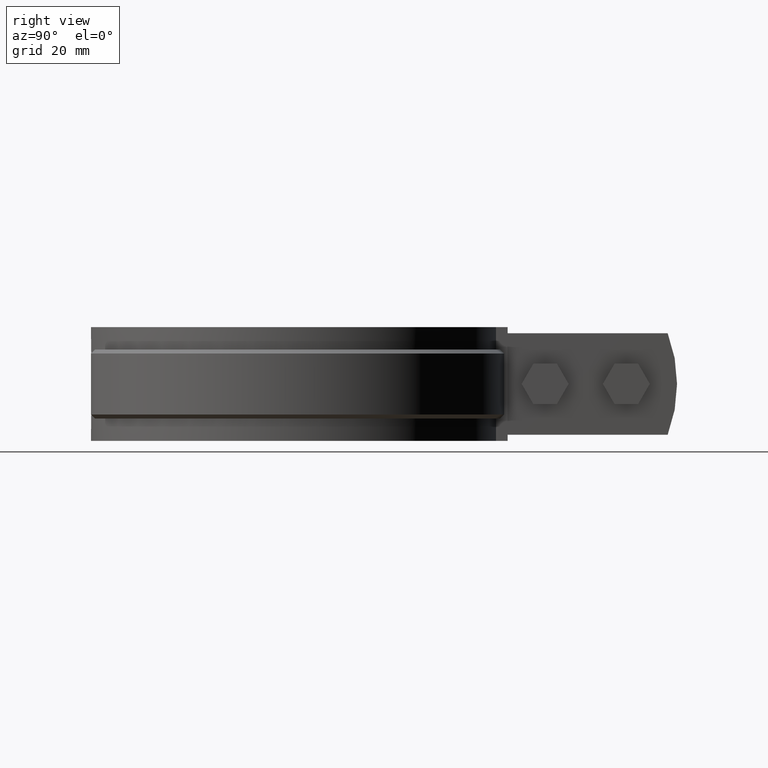
[diagram: clean part render]
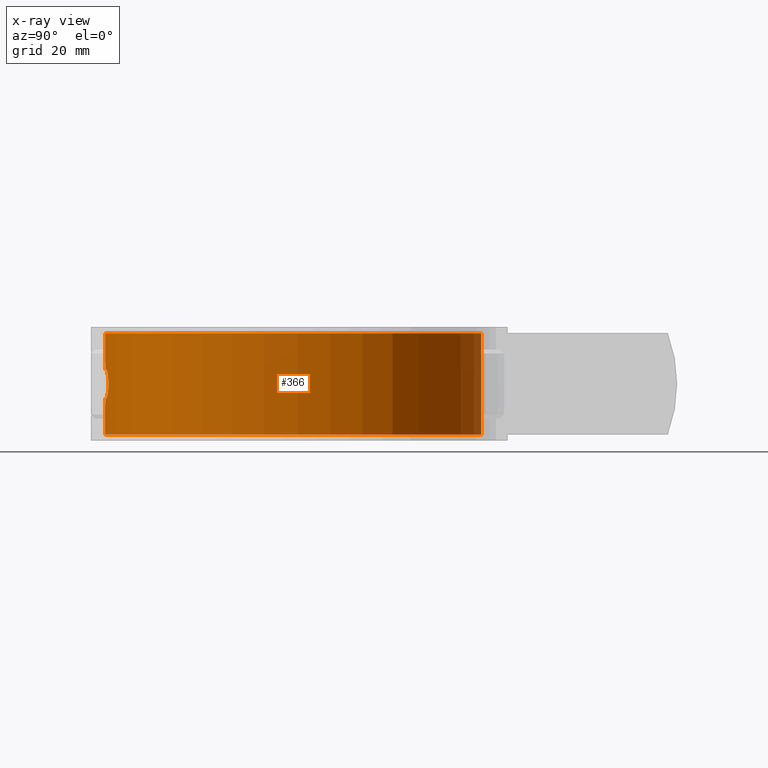
[diagram: x-ray — body ghosted, one internal face saturated and labeled with its STEP entity id]
A machine part, right view, then the same camera in x-ray: the body is ghosted and one INTERNAL B-rep face — a face not visible from any outside direction — is saturated and labeled: STEP entity #366.
In plain terms, the highlighted cylindrical surface (partial cylindrical patch) has radius 46.55 mm, axis along (0, 0, 1).
Its self-contained STEP definition (entity closure, byte-faithful):
#366 = ADVANCED_FACE( '', ( #623, #624 ), #625, .T. );
#623 = FACE_BOUND( '', #1312, .T. );
#624 = FACE_OUTER_BOUND( '', #1313, .T. );
#625 = CYLINDRICAL_SURFACE( '', #1314, 46.5500000000000 );
#1312 = EDGE_LOOP( '', ( #2775, #2776, #2777, #2778, #2779, #2780, #2781, #2782, #2783, #2784, #2785, #2786, #2787, #2788, #2789, #2790 ) );
#1313 = EDGE_LOOP( '', ( #2791, #2792, #2793, #2794 ) );
#1314 = AXIS2_PLACEMENT_3D( '', #2795, #2796, #2797 );
#2775 = ORIENTED_EDGE( '', *, *, #4192, .F. );
#2776 = ORIENTED_EDGE( '', *, *, #4193, .F. );
#2777 = ORIENTED_EDGE( '', *, *, #4194, .F. );
#2778 = ORIENTED_EDGE( '', *, *, #4195, .F. );
#2779 = ORIENTED_EDGE( '', *, *, #4196, .F. );
#2780 = ORIENTED_EDGE( '', *, *, #4197, .F. );
#2781 = ORIENTED_EDGE( '', *, *, #4198, .F. );
#2782 = ORIENTED_EDGE( '', *, *, #4199, .F. );
#2783 = ORIENTED_EDGE( '', *, *, #4200, .F. );
#2784 = ORIENTED_EDGE( '', *, *, #4201, .F. );
#2785 = ORIENTED_EDGE( '', *, *, #4202, .F. );
#2786 = ORIENTED_EDGE( '', *, *, #4203, .F. );
#2787 = ORIENTED_EDGE( '', *, *, #4204, .F. );
#2788 = ORIENTED_EDGE( '', *, *, #4205, .F. );
#2789 = ORIENTED_EDGE( '', *, *, #4206, .F. );
#2790 = ORIENTED_EDGE( '', *, *, #4207, .F. );
#2791 = ORIENTED_EDGE( '', *, *, #4208, .T. );
#2792 = ORIENTED_EDGE( '', *, *, #4209, .F. );
#2793 = ORIENTED_EDGE( '', *, *, #4186, .F. );
#2794 = ORIENTED_EDGE( '', *, *, #4210, .T. );
#2795 = CARTESIAN_POINT( '', ( -2.60208521396521E-015, 1.38777878078145E-014, 14.0000000000000 ) );
#2796 = DIRECTION( '', ( 0.000000000000000, 0.000000000000000, 1.00000000000000 ) );
#2797 = DIRECTION( '', ( 0.107411385606873, 0.994214662053428, 0.000000000000000 ) );
#4186 = EDGE_CURVE( '', #4811, #4813, #4814, .T. );
#4192 = EDGE_CURVE( '', #4824, #4825, #4826, .T. );
#4193 = EDGE_CURVE( '', #4827, #4824, #4828, .F. );
#4194 = EDGE_CURVE( '', #4829, #4827, #4830, .T. );
#4195 = EDGE_CURVE( '', #4831, #4829, #4832, .F. );
#4196 = EDGE_CURVE( '', #4833, #4831, #4834, .T. );
#4197 = EDGE_CURVE( '', #4835, #4833, #4836, .F. );
#4198 = EDGE_CURVE( '', #4837, #4835, #4838, .T. );
#4199 = EDGE_CURVE( '', #4839, #4837, #4840, .F. );
#4200 = EDGE_CURVE( '', #4841, #4839, #4842, .T. );
#4201 = EDGE_CURVE( '', #4843, #4841, #4844, .F. );
#4202 = EDGE_CURVE( '', #4845, #4843, #4846, .T. );
#4203 = EDGE_CURVE( '', #4847, #4845, #4848, .F. );
#4204 = EDGE_CURVE( '', #4849, #4847, #4850, .T. );
#4205 = EDGE_CURVE( '', #4851, #4849, #4852, .F. );
#4206 = EDGE_CURVE( '', #4853, #4851, #4854, .T. );
#4207 = EDGE_CURVE( '', #4825, #4853, #4855, .F. );
#4208 = EDGE_CURVE( '', #4856, #4857, #4858, .T. );
#4209 = EDGE_CURVE( '', #4813, #4857, #4859, .T. );
#4210 = EDGE_CURVE( '', #4811, #4856, #4860, .T. );
#4811 = VERTEX_POINT( '', #7170 );
#4813 = VERTEX_POINT( '', #7172 );
#4814 = CIRCLE( '', #7173, 46.5500000000000 );
#4824 = VERTEX_POINT( '', #7201 );
#4825 = VERTEX_POINT( '', #7202 );
#4826 = B_SPLINE_CURVE_WITH_KNOTS( '', 3, ( #7203, #7204, #7205, #7206, #7207, #7208 ), .UNSPECIFIED., .F., .F., ( 4, 2, 4 ), ( 2.35809924648085E-013, 0.000335866557489505, 0.000671733114743200 ), .UNSPECIFIED. );
#4827 = VERTEX_POINT( '', #7209 );
#4828 = ELLIPSE( '', #7210, 212.061327465781, 46.5500000000000 );
#4829 = VERTEX_POINT( '', #7211 );
#4830 = B_SPLINE_CURVE_WITH_KNOTS( '', 3, ( #7212, #7213, #7214, #7215, #7216, #7217, #7218, #7219, #7220, #7221 ), .UNSPECIFIED., .F., .F., ( 4, 2, 2, 2, 4 ), ( 1.08420217248550E-019, 0.000671567803738867, 0.00134313560747773, 0.00201470341121660, 0.00268627121495547 ), .UNSPECIFIED. );
#4831 = VERTEX_POINT( '', #7222 );
#4832 = ELLIPSE( '', #7223, 212.061219288399, 46.5500000000000 );
#4833 = VERTEX_POINT( '', #7224 );
#4834 = B_SPLINE_CURVE_WITH_KNOTS( '', 3, ( #7225, #7226, #7227, #7228, #7229, #7230 ), .UNSPECIFIED., .F., .F., ( 4, 2, 4 ), ( 1.57862219157823E-018, 0.000335865712486407, 0.000671731424972812 ), .UNSPECIFIED. );
#4835 = VERTEX_POINT( '', #7231 );
#4836 = CIRCLE( '', #7232, 46.5500000000000 );
#4837 = VERTEX_POINT( '', #7233 );
#4838 = B_SPLINE_CURVE_WITH_KNOTS( '', 3, ( #7234, #7235, #7236, #7237, #7238, #7239, #7240, #7241, #7242, #7243, #7244, #7245, #7246, #7247, #7248, #7249, #7250, #7251, #7252, #7253, #7254, #7255, #7256, #7257, #7258, #7259, #7260, #7261, #7262, #7263, #7264, #7265, #7266, #7267 ), .UNSPECIFIED., .F., .F., ( 4, 2, 2, 2, 2, 2, 2, 2, 2, 2, 2, 2, 2, 2, 2, 2, 4 ), ( 5.27595548005020E-018, 0.000687153855287154, 0.00137430771057430, 0.00206146156586145, 0.00274861542114860, 0.00343576927643575, 0.00412292313172290, 0.00481007698701004, 0.00549723084229719, 0.00618438469758434, 0.00687153855287149, 0.00755869240815863, 0.00824584626344578, 0.00893300011873293, 0.00962015397402007, 0.0103073078293072, 0.0109944616845944 ), .UNSPECIFIED. );
#4839 = VERTEX_POINT( '', #7268 );
#4840 = CIRCLE( '', #7269, 46.5500000000000 );
#4841 = VERTEX_POINT( '', #7270 );
#4842 = B_SPLINE_CURVE_WITH_KNOTS( '', 3, ( #7271, #7272, #7273, #7274, #7275, #7276 ), .UNSPECIFIED., .F., .F., ( 4, 2, 4 ), ( 4.84869951806108E-019, 0.000335866557371588, 0.000671733114743175 ), .UNSPECIFIED. );
#4843 = VERTEX_POINT( '', #7277 );
#4844 = ELLIPSE( '', #7278, 212.061327465736, 46.5500000000000 );
#4845 = VERTEX_POINT( '', #7279 );
#4846 = B_SPLINE_CURVE_WITH_KNOTS( '', 3, ( #7280, #7281, #7282, #7283, #7284, #7285, #7286, #7287, #7288, #7289 ), .UNSPECIFIED., .F., .F., ( 4, 2, 2, 2, 4 ), ( 1.08420217248550E-019, 0.000671567803738866, 0.00134313560747773, 0.00201470341121660, 0.00268627121495546 ), .UNSPECIFIED. );
#4847 = VERTEX_POINT( '', #7290 );
#4848 = ELLIPSE( '', #7291, 212.061219288384, 46.5500000000000 );
#4849 = VERTEX_POINT( '', #7292 );
#4850 = B_SPLINE_CURVE_WITH_KNOTS( '', 3, ( #7293, #7294, #7295, #7296, #7297, #7298 ), .UNSPECIFIED., .F., .F., ( 4, 2, 4 ), ( 1.57862219157823E-018, 0.000335865780853493, 0.000671731561706984 ), .UNSPECIFIED. );
#4851 = VERTEX_POINT( '', #7299 );
#4852 = CIRCLE( '', #7300, 46.5500000000000 );
#4853 = VERTEX_POINT( '', #7301 );
#4854 = B_SPLINE_CURVE_WITH_KNOTS( '', 3, ( #7302, #7303, #7304, #7305, #7306, #7307, #7308, #7309, #7310, #7311, #7312, #7313, #7314, #7315, #7316, #7317, #7318, #7319, #7320, #7321, #7322, #7323, #7324, #7325, #7326, #7327, #7328, #7329, #7330, #7331, #7332, #7333, #7334, #7335 ), .UNSPECIFIED., .F., .F., ( 4, 2, 2, 2, 2, 2, 2, 2, 2, 2, 2, 2, 2, 2, 2, 2, 4 ), ( 5.27595548005020E-018, 0.000687153882971471, 0.00137430776594294, 0.00206146164891440, 0.00274861553188587, 0.00343576941485733, 0.00412292329782880, 0.00481007718080027, 0.00549723106377173, 0.00618438494674320, 0.00687153882971467, 0.00755869271268614, 0.00824584659565760, 0.00893300047862907, 0.00962015436160053, 0.0103073082445720, 0.0109944621275435 ), .UNSPECIFIED. );
#4855 = CIRCLE( '', #7336, 46.5500000000000 );
#4856 = VERTEX_POINT( '', #7337 );
#4857 = VERTEX_POINT( '', #7338 );
#4858 = CIRCLE( '', #7339, 46.5500000000000 );
#4859 = LINE( '', #7340, #7341 );
#4860 = LINE( '', #7342, #7343 );
#7170 = CARTESIAN_POINT( '', ( -6.57618567103940, 46.0831453138782, 12.5000000000000 ) );
#7172 = CARTESIAN_POINT( '', ( 6.57618567103934, 46.0831453138782, 12.5000000000000 ) );
#7173 = AXIS2_PLACEMENT_3D( '', #8435, #8436, #8437 );
#7201 = CARTESIAN_POINT( '', ( -1.16219512106161, -46.5354897094742, 3.89024390639292 ) );
#7202 = CARTESIAN_POINT( '', ( -1.65000682858044, -46.5207478171367, 3.50000000000001 ) );
#7203 = CARTESIAN_POINT( '', ( -1.16219512100910, -46.5354897094755, 3.89024390662629 ) );
#7204 = CARTESIAN_POINT( '', ( -1.18712430843555, -46.5348671184127, 3.77944751362335 ) );
#7205 = CARTESIAN_POINT( '', ( -1.24903601452478, -46.5333243675708, 3.68044135960887 ) );
#7206 = CARTESIAN_POINT( '', ( -1.42636244714934, -46.5282264634329, 3.53861503274657 ) );
#7207 = CARTESIAN_POINT( '', ( -1.53650488160871, -46.5247735093353, 3.50000000000000 ) );
#7208 = CARTESIAN_POINT( '', ( -1.65000000000002, -46.5207480593337, 3.50000000000000 ) );
#7209 = CARTESIAN_POINT( '', ( -0.975610000000002, -46.5397753016481, 4.71951200000000 ) );
#7210 = AXIS2_PLACEMENT_3D( '', #8444, #8445, #8446 );
#7211 = CARTESIAN_POINT( '', ( 0.975609757981829, -46.5397753067215, 4.71951218674745 ) );
#7212 = CARTESIAN_POINT( '', ( 0.975609757981829, -46.5397753067216, 4.71951218674745 ) );
#7213 = CARTESIAN_POINT( '', ( 0.925763530062169, -46.5408202293933, 4.94105088737478 ) );
#7214 = CARTESIAN_POINT( '', ( 0.802006305268868, -46.5434284250094, 5.13901841187659 ) );
#7215 = CARTESIAN_POINT( '', ( 0.447390993628473, -46.5481877731720, 5.42271336043331 ) );
#7216 = CARTESIAN_POINT( '', ( 0.227078940025185, -46.5500000020690, 5.50000007705435 ) );
#7217 = CARTESIAN_POINT( '', ( -0.227079788288333, -46.5499999979310, 5.49999992981278 ) );
#7218 = CARTESIAN_POINT( '', ( -0.447400404872255, -46.5481876641531, 5.42270760689817 ) );
#7219 = CARTESIAN_POINT( '', ( -0.802005970919333, -46.5434284122056, 5.13901722378988 ) );
#7220 = CARTESIAN_POINT( '', ( -0.925763810819974, -46.5408202237671, 4.94105072646402 ) );
#7221 = CARTESIAN_POINT( '', ( -0.975610000000002, -46.5397753016481, 4.71951200000000 ) );
#7222 = CARTESIAN_POINT( '', ( 1.16219499999999, -46.5354897124976, 3.89024400000000 ) );
#7223 = AXIS2_PLACEMENT_3D( '', #8447, #8448, #8449 );
#7224 = CARTESIAN_POINT( '', ( 1.64999986523903, -46.5207480641134, 3.50000000000001 ) );
#7225 = CARTESIAN_POINT( '', ( 1.64999986523903, -46.5207480641134, 3.50000000000001 ) );
#7226 = CARTESIAN_POINT( '', ( 1.53650474192583, -46.5247735139603, 3.50000003008018 ) );
#7227 = CARTESIAN_POINT( '', ( 1.42636209201219, -46.5282264717673, 3.53861567593137 ) );
#7228 = CARTESIAN_POINT( '', ( 1.24903833579503, -46.5333243027114, 3.68043907185497 ) );
#7229 = CARTESIAN_POINT( '', ( 1.18712418818275, -46.5348671214808, 3.77944760585617 ) );
#7230 = CARTESIAN_POINT( '', ( 1.16219499999999, -46.5354897124977, 3.89024400000000 ) );
#7231 = CARTESIAN_POINT( '', ( 5.00000000000005, -46.2806925185870, 3.50000000000001 ) );
#7232 = AXIS2_PLACEMENT_3D( '', #8450, #8451, #8452 );
#7233 = CARTESIAN_POINT( '', ( 5.00000045640249, -46.2806924692789, -3.49999999999999 ) );
#7234 = CARTESIAN_POINT( '', ( 5.00000045640249, -46.2806924692790, -3.49999999999999 ) );
#7235 = CARTESIAN_POINT( '', ( 5.23102106610029, -46.2557338290275, -3.49999997017233 ) );
#7236 = CARTESIAN_POINT( '', ( 5.45799987825243, -46.2294633025122, -3.47735289382783 ) );
#7237 = CARTESIAN_POINT( '', ( 5.90426049893031, -46.1745898505888, -3.38881391632060 ) );
#7238 = CARTESIAN_POINT( '', ( 6.12580446615838, -46.1456667121773, -3.32188126735502 ) );
#7239 = CARTESIAN_POINT( '', ( 6.54861750302441, -46.0875649765535, -3.14708056049549 ) );
#7240 = CARTESIAN_POINT( '', ( 6.74912349530374, -46.0585351708356, -3.04015198784039 ) );
#7241 = CARTESIAN_POINT( '', ( 7.12865837246470, -46.0013212837050, -2.78760982851635 ) );
#7242 = CARTESIAN_POINT( '', ( 7.30866038664462, -45.9729568370786, -2.64046611082769 ) );
#7243 = CARTESIAN_POINT( '', ( 7.63169234832155, -45.9204371591972, -2.31865829217158 ) );
#7244 = CARTESIAN_POINT( '', ( 7.77675668729094, -45.8959855185138, -2.14300665957759 ) );
#7245 = CARTESIAN_POINT( '', ( 8.03321742033214, -45.8517922132454, -1.76137560577944 ) );
#7246 = CARTESIAN_POINT( '', ( 8.14286709248893, -45.8323487025125, -1.55710842709565 ) );
#7247 = CARTESIAN_POINT( '', ( 8.31862646017254, -45.8007742935724, -1.13530704311512 ) );
#7248 = CARTESIAN_POINT( '', ( 8.38624550175340, -45.7883776663458, -0.914891106130513 ) );
#7249 = CARTESIAN_POINT( '', ( 8.47729764712872, -45.7716076572975, -0.460527173351251 ) );
#7250 = CARTESIAN_POINT( '', ( 8.49980240594055, -45.7674104478266, -0.232279077470389 ) );
#7251 = CARTESIAN_POINT( '', ( 8.50019502774524, -45.7673375294014, 0.226285044048760 ) );
#7252 = CARTESIAN_POINT( '', ( 8.47735734561300, -45.7715960510356, 0.459203352271270 ) );
#7253 = CARTESIAN_POINT( '', ( 8.38738052822721, -45.7881692197789, 0.910239572443770 ) );
#7254 = CARTESIAN_POINT( '', ( 8.32082453500569, -45.8003754511833, 1.12914289397608 ) );
#7255 = CARTESIAN_POINT( '', ( 8.14462244122538, -45.8320372414493, 1.55376511699689 ) );
#7256 = CARTESIAN_POINT( '', ( 8.03452138018220, -45.8515604122794, 1.75891288938775 ) );
#7257 = CARTESIAN_POINT( '', ( 7.78038526948293, -45.8953672074636, 2.13811939918122 ) );
#7258 = CARTESIAN_POINT( '', ( 7.63542065789160, -45.9198242279763, 2.31469933826259 ) );
#7259 = CARTESIAN_POINT( '', ( 7.30862022143949, -45.9729700607865, 2.64074814788168 ) );
#7260 = CARTESIAN_POINT( '', ( 7.13206941632345, -46.0007900861461, 2.78496147469917 ) );
#7261 = CARTESIAN_POINT( '', ( 6.75371262726836, -46.0578600073560, 3.03746910929910 ) );
#7262 = CARTESIAN_POINT( '', ( 6.54952335391559, -46.0874356862922, 3.14662697606875 ) );
#7263 = CARTESIAN_POINT( '', ( 6.12695479998139, -46.1455134241736, 3.32148439381650 ) );
#7264 = CARTESIAN_POINT( '', ( 5.90945041499932, -46.1739288055971, 3.38746892245342 ) );
#7265 = CARTESIAN_POINT( '', ( 5.46202402647784, -46.2289908940901, 3.47686337254867 ) );
#7266 = CARTESIAN_POINT( '', ( 5.23100508323780, -46.2557355580635, 3.50000000000000 ) );
#7267 = CARTESIAN_POINT( '', ( 5.00000000000005, -46.2806925185870, 3.50000000000000 ) );
#7268 = CARTESIAN_POINT( '', ( 1.65000000000003, -46.5207480593336, -3.49999999999999 ) );
#7269 = AXIS2_PLACEMENT_3D( '', #8453, #8454, #8455 );
#7270 = CARTESIAN_POINT( '', ( 1.16219512100914, -46.5354897094755, -3.89024390662629 ) );
#7271 = CARTESIAN_POINT( '', ( 1.16219512100914, -46.5354897094755, -3.89024390662629 ) );
#7272 = CARTESIAN_POINT( '', ( 1.18712430844434, -46.5348671184125, -3.77944751358446 ) );
#7273 = CARTESIAN_POINT( '', ( 1.24903601441365, -46.5333243675739, -3.68044135973253 ) );
#7274 = CARTESIAN_POINT( '', ( 1.42636244707378, -46.5282264634353, -3.53861503277230 ) );
#7275 = CARTESIAN_POINT( '', ( 1.53650488156888, -46.5247735093367, -3.50000000000002 ) );
#7276 = CARTESIAN_POINT( '', ( 1.65000000000003, -46.5207480593337, -3.50000000000002 ) );
#7277 = CARTESIAN_POINT( '', ( 0.975609999999998, -46.5397753016481, -4.71951200000000 ) );
#7278 = AXIS2_PLACEMENT_3D( '', #8456, #8457, #8458 );
#7279 = CARTESIAN_POINT( '', ( -0.975609757981835, -46.5397753067215, -4.71951218674743 ) );
#7280 = CARTESIAN_POINT( '', ( -0.975609757981835, -46.5397753067216, -4.71951218674743 ) );
#7281 = CARTESIAN_POINT( '', ( -0.925763530062175, -46.5408202293933, -4.94105088737476 ) );
#7282 = CARTESIAN_POINT( '', ( -0.802006305268872, -46.5434284250094, -5.13901841187657 ) );
#7283 = CARTESIAN_POINT( '', ( -0.447390993628479, -46.5481877731720, -5.42271336043329 ) );
#7284 = CARTESIAN_POINT( '', ( -0.227078940025193, -46.5500000020690, -5.50000007705433 ) );
#7285 = CARTESIAN_POINT( '', ( 0.227079788288325, -46.5499999979310, -5.49999992981276 ) );
#7286 = CARTESIAN_POINT( '', ( 0.447400404872248, -46.5481876641531, -5.42270760689816 ) );
#7287 = CARTESIAN_POINT( '', ( 0.802005970919326, -46.5434284122056, -5.13901722378986 ) );
#7288 = CARTESIAN_POINT( '', ( 0.925763810819969, -46.5408202237671, -4.94105072646401 ) );
#7289 = CARTESIAN_POINT( '', ( 0.975609999999998, -46.5397753016481, -4.71951200000000 ) );
#7290 = CARTESIAN_POINT( '', ( -1.16219500000001, -46.5354897124976, -3.89024399999999 ) );
#7291 = AXIS2_PLACEMENT_3D( '', #8459, #8460, #8461 );
#7292 = CARTESIAN_POINT( '', ( -1.64999999999996, -46.5207480593336, -3.50000000000000 ) );
#7293 = CARTESIAN_POINT( '', ( -1.64999999999996, -46.5207480593337, -3.50000000000000 ) );
#7294 = CARTESIAN_POINT( '', ( -1.53650485359797, -46.5247735103287, -3.49999999951289 ) );
#7295 = CARTESIAN_POINT( '', ( -1.42636217255436, -46.5282264693543, -3.53861563053760 ) );
#7296 = CARTESIAN_POINT( '', ( -1.24903835752522, -46.5333243021842, -3.68043903545139 ) );
#7297 = CARTESIAN_POINT( '', ( -1.18712419326019, -46.5348671213540, -3.77944758328980 ) );
#7298 = CARTESIAN_POINT( '', ( -1.16219500000001, -46.5354897124977, -3.89024399999999 ) );
#7299 = CARTESIAN_POINT( '', ( -4.99999999999996, -46.2806925185870, -3.49999999999999 ) );
#7300 = AXIS2_PLACEMENT_3D( '', #8462, #8463, #8464 );
#7301 = CARTESIAN_POINT( '', ( -4.99999999999995, -46.2806925185870, 3.49999999999999 ) );
#7302 = CARTESIAN_POINT( '', ( -4.99999999999995, -46.2806925185871, 3.49999999999999 ) );
#7303 = CARTESIAN_POINT( '', ( -5.23102061923499, -46.2557338796101, 3.49999999999999 ) );
#7304 = CARTESIAN_POINT( '', ( -5.45799944364656, -46.2294633538933, 3.47735295196014 ) );
#7305 = CARTESIAN_POINT( '', ( -5.90426009345670, -46.1745899025062, 3.38881402486156 ) );
#7306 = CARTESIAN_POINT( '', ( -6.12580407810965, -46.1456667637754, 3.32188139904436 ) );
#7307 = CARTESIAN_POINT( '', ( -6.54861715180519, -46.0875650265435, 3.14708073443647 ) );
#7308 = CARTESIAN_POINT( '', ( -6.74912316385102, -46.0585352194934, 3.04015217952470 ) );
#7309 = CARTESIAN_POINT( '', ( -7.12865808355650, -46.0013213285650, 2.78761004961941 ) );
#7310 = CARTESIAN_POINT( '', ( -7.30866011964015, -45.9729568796068, 2.64046634434639 ) );
#7311 = CARTESIAN_POINT( '', ( -7.63169212620998, -45.9204371961913, 2.31865854591509 ) );
#7312 = CARTESIAN_POINT( '', ( -7.77675648767638, -45.8959855524029, 2.14300691967566 ) );
#7313 = CARTESIAN_POINT( '', ( -8.03321726657160, -45.8517922402499, 1.76137587152719 ) );
#7314 = CARTESIAN_POINT( '', ( -8.14286695952601, -45.8323487261774, 1.55710869626849 ) );
#7315 = CARTESIAN_POINT( '', ( -8.31862636957707, -45.8007743100688, 1.13530731045498 ) );
#7316 = CARTESIAN_POINT( '', ( -8.38624543214993, -45.7883776791127, 0.914891365683327 ) );
#7317 = CARTESIAN_POINT( '', ( -8.47729761426446, -45.7716076634032, 0.460527425126601 ) );
#7318 = CARTESIAN_POINT( '', ( -8.49980239049752, -45.7674104506947, 0.232279322292280 ) );
#7319 = CARTESIAN_POINT( '', ( -8.50019504278589, -45.7673375266080, -0.226284819196425 ) );
#7320 = CARTESIAN_POINT( '', ( -8.47735737429712, -45.7715960457113, -0.459203140119214 ) );
#7321 = CARTESIAN_POINT( '', ( -8.38738057996331, -45.7881692102903, -0.910239381463738 ) );
#7322 = CARTESIAN_POINT( '', ( -8.32082459610061, -45.8003754400710, -1.12914271597524 ) );
#7323 = CARTESIAN_POINT( '', ( -8.14462251528833, -45.8320372282750, -1.55376496928571 ) );
#7324 = CARTESIAN_POINT( '', ( -8.03452146006033, -45.8515603982741, -1.75891275294265 ) );
#7325 = CARTESIAN_POINT( '', ( -7.78038535525887, -45.8953671929142, -2.13811928844699 ) );
#7326 = CARTESIAN_POINT( '', ( -7.63542073882136, -45.9198242145162, -2.31469924684413 ) );
#7327 = CARTESIAN_POINT( '', ( -7.30862030434758, -45.9729700476026, -2.64074807583887 ) );
#7328 = CARTESIAN_POINT( '', ( -7.13206949739763, -46.0007900735982, -2.78496141334430 ) );
#7329 = CARTESIAN_POINT( '', ( -6.75371269795580, -46.0578599970128, -3.03746906937119 ) );
#7330 = CARTESIAN_POINT( '', ( -6.54952341436347, -46.0874356777243, -3.14662694683518 ) );
#7331 = CARTESIAN_POINT( '', ( -6.12695485091150, -46.1455134174337, -3.32148437696212 ) );
#7332 = CARTESIAN_POINT( '', ( -5.90945045816293, -46.1739288001280, -3.38746891163571 ) );
#7333 = CARTESIAN_POINT( '', ( -5.46202404727442, -46.2289908916880, -3.47686337058726 ) );
#7334 = CARTESIAN_POINT( '', ( -5.23100509302413, -46.2557355570062, -3.49999999999999 ) );
#7335 = CARTESIAN_POINT( '', ( -4.99999999999996, -46.2806925185871, -3.49999999999999 ) );
#7336 = AXIS2_PLACEMENT_3D( '', #8465, #8466, #8467 );
#7337 = CARTESIAN_POINT( '', ( -6.57618567103934, 46.0831453138782, -12.5000000000000 ) );
#7338 = CARTESIAN_POINT( '', ( 6.57618567103933, 46.0831453138782, -12.5000000000000 ) );
#7339 = AXIS2_PLACEMENT_3D( '', #8468, #8469, #8470 );
#7340 = CARTESIAN_POINT( '', ( 6.57618567103933, 46.0831453138782, 14.0000000000000 ) );
#7341 = VECTOR( '', #8471, 1000.00000000000 );
#7342 = CARTESIAN_POINT( '', ( -6.57618567103934, 46.0831453138782, 14.0000000000000 ) );
#7343 = VECTOR( '', #8472, 1000.00000000000 );
#8435 = CARTESIAN_POINT( '', ( -1.73472347597681E-015, -1.38777878078145E-014, 12.5000000000000 ) );
#8436 = DIRECTION( '', ( 0.000000000000000, 0.000000000000000, 1.00000000000000 ) );
#8437 = DIRECTION( '', ( 1.00000000000000, -8.32667268468867E-017, 0.000000000000000 ) );
#8444 = CARTESIAN_POINT( '', ( 0.000000000000000, 0.000000000000000, 9.05556109223647 ) );
#8445 = DIRECTION( '', ( -0.975609806487721, 4.80909629331711E-017, 0.219511971165565 ) );
#8446 = DIRECTION( '', ( 0.219511971165565, -1.08204550615527E-017, 0.975609806487721 ) );
#8447 = CARTESIAN_POINT( '', ( 0.000000000000000, 0.000000000000000, 9.05555787945007 ) );
#8448 = DIRECTION( '', ( 0.975609781292650, -8.09916679520132E-017, 0.219512083143749 ) );
#8449 = DIRECTION( '', ( -0.219512083143749, 1.82231155225578E-017, 0.975609781292650 ) );
#8450 = CARTESIAN_POINT( '', ( 0.000000000000000, 0.000000000000000, 3.50000000000000 ) );
#8451 = DIRECTION( '', ( 1.29456975819165E-016, -7.49405559050251E-017, 1.00000000000000 ) );
#8452 = DIRECTION( '', ( 1.00000000000000, 0.000000000000000, -1.29456975819165E-016 ) );
#8453 = CARTESIAN_POINT( '', ( 0.000000000000000, 0.000000000000000, -3.49999999999999 ) );
#8454 = DIRECTION( '', ( -1.29456975819163E-016, 7.49405559050251E-017, -1.00000000000000 ) );
#8455 = DIRECTION( '', ( -1.00000000000000, 0.000000000000000, 1.29456975819163E-016 ) );
#8456 = CARTESIAN_POINT( '', ( 0.000000000000000, 0.000000000000000, -9.05556109223549 ) );
#8457 = DIRECTION( '', ( 0.975609806487710, -4.80909629331669E-017, -0.219511971165612 ) );
#8458 = DIRECTION( '', ( 0.219511971165612, -1.08204550615542E-017, 0.975609806487710 ) );
#8459 = CARTESIAN_POINT( '', ( 0.000000000000000, 0.000000000000000, -9.05555787944971 ) );
#8460 = DIRECTION( '', ( -0.975609781292646, 8.09916679520141E-017, -0.219512083143765 ) );
#8461 = DIRECTION( '', ( -0.219512083143765, 1.82231155225593E-017, 0.975609781292646 ) );
#8462 = CARTESIAN_POINT( '', ( 0.000000000000000, 0.000000000000000, -3.49999999999999 ) );
#8463 = DIRECTION( '', ( -1.29456975819163E-016, 7.49405559050251E-017, -1.00000000000000 ) );
#8464 = DIRECTION( '', ( -1.00000000000000, 0.000000000000000, 1.29456975819163E-016 ) );
#8465 = CARTESIAN_POINT( '', ( 0.000000000000000, 0.000000000000000, 3.50000000000000 ) );
#8466 = DIRECTION( '', ( 1.29456975819168E-016, -7.49405559050251E-017, 1.00000000000000 ) );
#8467 = DIRECTION( '', ( 1.00000000000000, 0.000000000000000, -1.29456975819168E-016 ) );
#8468 = CARTESIAN_POINT( '', ( -1.73472347597681E-015, -1.38777878078145E-014, -12.5000000000000 ) );
#8469 = DIRECTION( '', ( 0.000000000000000, 0.000000000000000, 1.00000000000000 ) );
#8470 = DIRECTION( '', ( 1.00000000000000, -8.32667268468867E-017, 0.000000000000000 ) );
#8471 = DIRECTION( '', ( 0.000000000000000, 0.000000000000000, -1.00000000000000 ) );
#8472 = DIRECTION( '', ( 0.000000000000000, 0.000000000000000, -1.00000000000000 ) );